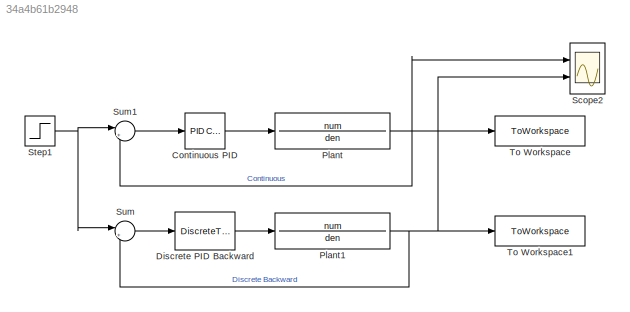
MODEL slx_34a4b61b2948
KIND model
CONFIG AbsTol = auto
CONFIG EnableMultiTasking = off
CONFIG FixedStep = auto
CONFIG MaxStep = auto
CONFIG MinStep = auto
CONFIG RelTol = 1e-3
CONFIG SampleTimeConstraint = Unconstrained
CONFIG Solver = VariableStepAuto
CONFIG SolverName = VariableStepAuto
CONFIG StartTime = 0.0
CONFIG StopTime = 120
BLOCK [Reference] Continuous PID  REF=simulink/Continuous/PID Controller
  Ports = [1, 1]
  SourceBlock = simulink/Continuous/PID Controller
  SourceProductBaseCode = SL
  SourceType = PID 1dof
BLOCK [DiscreteTransferFcn] Discrete PID Backward
  Denominator = den_back
  InputPortMap = u0
  Numerator = num_back
  Ports = [1, 1]
  SampleTime = T
BLOCK [TransferFcn] Plant
  Denominator = den
  Numerator = num
BLOCK [TransferFcn] Plant1
  Denominator = den
  Numerator = num
BLOCK [Scope] Scope2
  Floating = off
  NumInputPorts = 2
  Ports = [2]
  ScopeSpecificationString = Simulink.scopes.TimeScopeBlockCfg('CurrentConfiguration', extmgr.ConfigurationSet(extmgr.Configuration('Core','General UI',true),extmgr.Configuration('Core','Source UI',true),extmgr.Configuration('Sources','WiredSimulink',true,'DataLoggingVariableName','ScopeData2'),extmgr.Configuration('Visuals','Time Domain',true,'SerializedDisplays',{struct('MinYLimReal','-0.14429','MaxYLimReal','1.29862','YLab...<+1410ch>
BLOCK [Step] Step1
  SampleTime = 0
  Time = 0
BLOCK [Sum] Sum
  Inputs = |+-
  Ports = [2, 1]
BLOCK [Sum] Sum1
  Inputs = |+-
  Ports = [2, 1]
BLOCK [ToWorkspace] To Workspace
  FixptAsFi = on
  MaxDataPoints = inf
  Ports = [1]
  SampleTime = -1
  SaveFormat = Timeseries
  VariableName = y_cont
BLOCK [ToWorkspace] To Workspace1
  FixptAsFi = on
  MaxDataPoints = inf
  Ports = [1]
  SampleTime = -1
  SaveFormat = Timeseries
  VariableName = y_back
LINE Continuous PID:1 -> Plant:1
LINE Discrete PID Backward:1 -> Plant1:1
NET Plant1:1 -> Scope2:2, Sum:2, To Workspace1:1
NET Plant:1 -> Scope2:1, Sum1:2, To Workspace:1
NET Step1:1 -> Sum1:1, Sum:1
LINE Sum1:1 -> Continuous PID:1
LINE Sum:1 -> Discrete PID Backward:1
note: NET lines group one-source signal fan-out (src -> all destinations, sorted); 1:1 wires keep LINE
